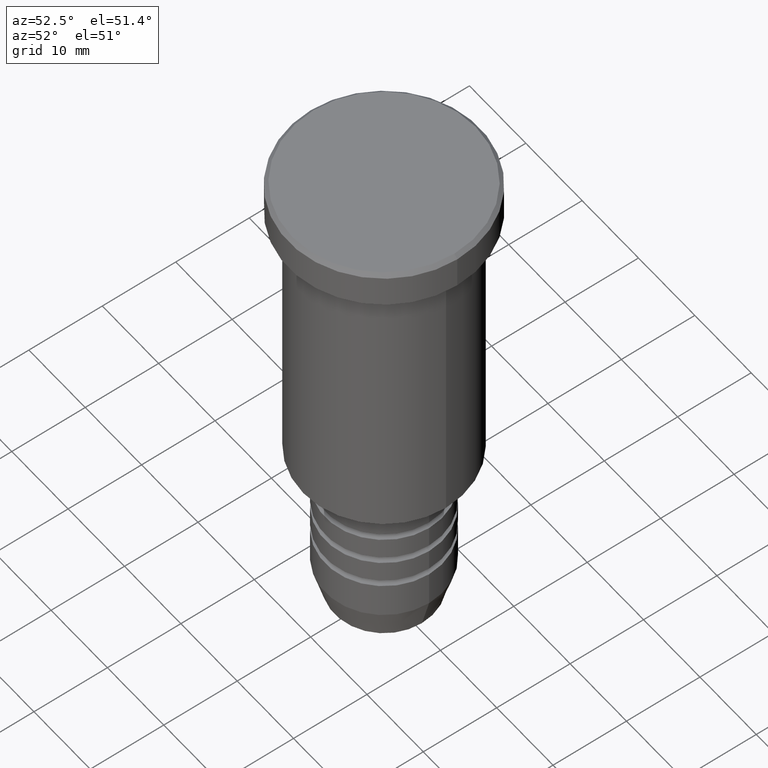
[diagram: clean part render]
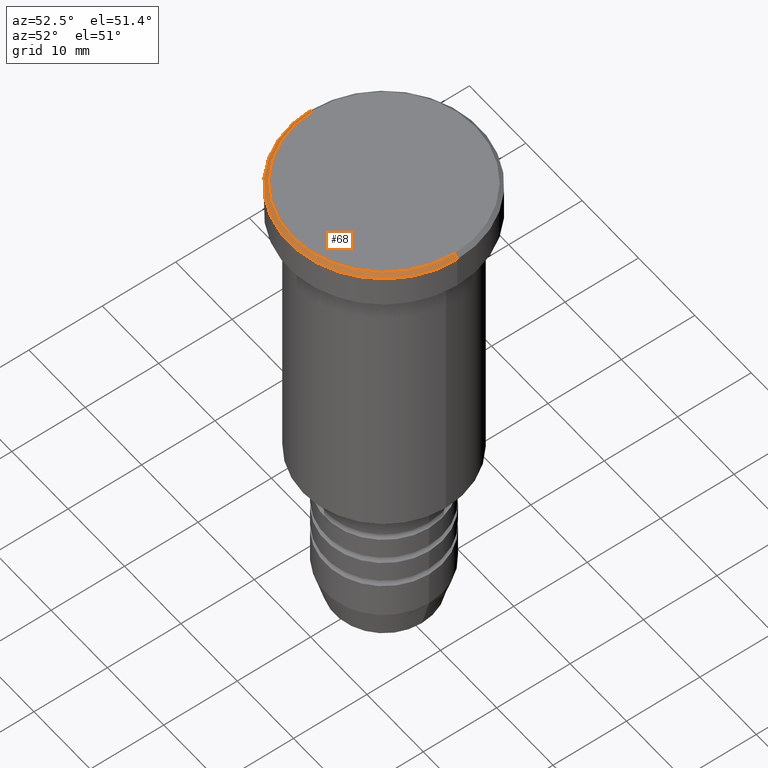
[diagram: same view with one face highlighted and labeled with its STEP entity id]
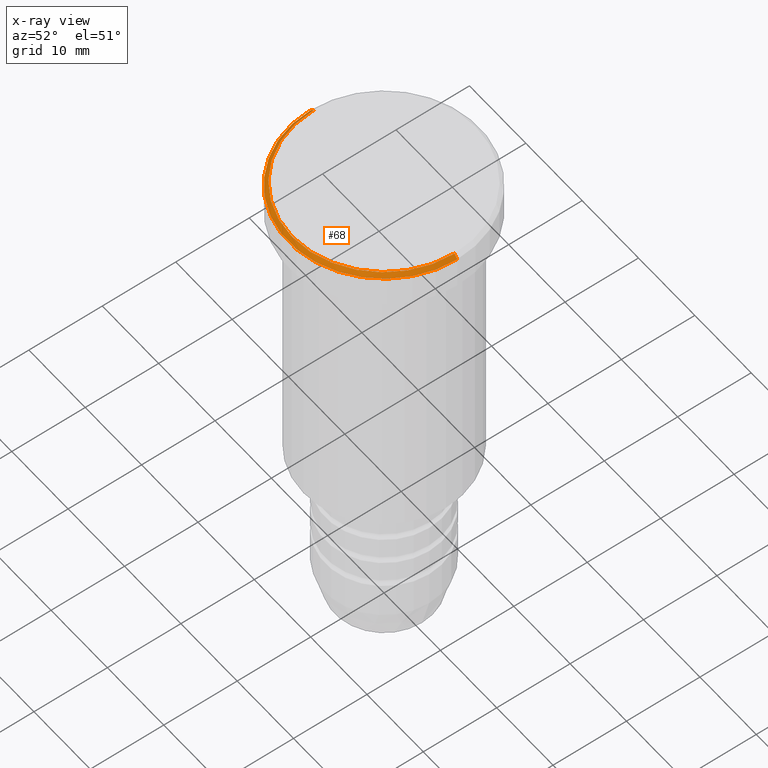
[diagram: x-ray of the same camera — body ghosted, the highlighted face saturated]
A machine part, auxiliary view. The second image highlights one B-rep face of the part: STEP entity #68.
The next image is the same camera in x-ray: the body ghosted, the highlighted face saturated — about 0% of this face is hidden behind the body in this view.
In plain terms, the highlighted conical surface has half-angle 45 deg.
Its self-contained STEP definition (entity closure, byte-faithful):
#9 = DIRECTION ( 'NONE',  ( 0.7071067811865487940, 8.659560562354948882E-17, -0.7071067811865463515 ) ) ;
#32 = VERTEX_POINT ( 'NONE', #161 ) ;
#68 = ADVANCED_FACE ( 'NONE', ( #906 ), #440, .T. ) ;
#129 = AXIS2_PLACEMENT_3D ( 'NONE', #1128, #1150, #494 ) ;
#138 = DIRECTION ( 'NONE',  ( -0.7071067811865487940, 0.000000000000000000, -0.7071067811865463515 ) ) ;
#161 = CARTESIAN_POINT ( 'NONE',  ( -13.00000000000000000, 1.592040838891559095E-15, -0.5000000000000004441 ) ) ;
#178 = DIRECTION ( 'NONE',  ( 1.000000000000000000, 0.000000000000000000, 0.000000000000000000 ) ) ;
#183 = EDGE_CURVE ( 'NONE', #806, #676, #827, .T. ) ;
#226 = LINE ( 'NONE', #973, #444 ) ;
#251 = VECTOR ( 'NONE', #9, 1000.000000000000000 ) ;
#287 = ORIENTED_EDGE ( 'NONE', *, *, #779, .T. ) ;
#297 = DIRECTION ( 'NONE',  ( 0.000000000000000000, 0.000000000000000000, -1.000000000000000000 ) ) ;
#326 = CIRCLE ( 'NONE', #936, 13.00000000000000000 ) ;
#357 = CARTESIAN_POINT ( 'NONE',  ( 0.000000000000000000, 0.000000000000000000, 0.000000000000000000 ) ) ;
#360 = CARTESIAN_POINT ( 'NONE',  ( 12.49999999999999645, 1.561424668912875111E-15, 0.000000000000000000 ) ) ;
#373 = CARTESIAN_POINT ( 'NONE',  ( 0.000000000000000000, 0.000000000000000000, -0.5000000000000004441 ) ) ;
#440 = CONICAL_SURFACE ( 'NONE', #1098, 12.49999999999999645, 0.7853981633974500554 ) ;
#444 = VECTOR ( 'NONE', #138, 1000.000000000000000 ) ;
#459 = EDGE_CURVE ( 'NONE', #676, #861, #938, .T. ) ;
#484 = EDGE_CURVE ( 'NONE', #861, #32, #326, .T. ) ;
#494 = DIRECTION ( 'NONE',  ( 1.000000000000000000, 0.000000000000000000, 0.000000000000000000 ) ) ;
#512 = CARTESIAN_POINT ( 'NONE',  ( 13.00000000000000000, 0.000000000000000000, -0.5000000000000004441 ) ) ;
#570 = ORIENTED_EDGE ( 'NONE', *, *, #484, .F. ) ;
#676 = VERTEX_POINT ( 'NONE', #360 ) ;
#689 = ORIENTED_EDGE ( 'NONE', *, *, #459, .F. ) ;
#714 = DIRECTION ( 'NONE',  ( 0.000000000000000000, 0.000000000000000000, -1.000000000000000000 ) ) ;
#759 = CARTESIAN_POINT ( 'NONE',  ( 12.49999999999999645, 1.530808498934191127E-15, 0.000000000000000000 ) ) ;
#779 = EDGE_CURVE ( 'NONE', #806, #32, #226, .T. ) ;
#806 = VERTEX_POINT ( 'NONE', #1014 ) ;
#827 = CIRCLE ( 'NONE', #129, 12.49999999999999645 ) ;
#861 = VERTEX_POINT ( 'NONE', #512 ) ;
#906 = FACE_OUTER_BOUND ( 'NONE', #1144, .T. ) ;
#916 = DIRECTION ( 'NONE',  ( -1.000000000000000000, 0.000000000000000000, 0.000000000000000000 ) ) ;
#936 = AXIS2_PLACEMENT_3D ( 'NONE', #373, #297, #178 ) ;
#938 = LINE ( 'NONE', #759, #251 ) ;
#973 = CARTESIAN_POINT ( 'NONE',  ( -12.49999999999999645, 0.000000000000000000, 0.000000000000000000 ) ) ;
#1014 = CARTESIAN_POINT ( 'NONE',  ( -12.49999999999999645, 0.000000000000000000, 0.000000000000000000 ) ) ;
#1098 = AXIS2_PLACEMENT_3D ( 'NONE', #357, #714, #916 ) ;
#1128 = CARTESIAN_POINT ( 'NONE',  ( 0.000000000000000000, 0.000000000000000000, 0.000000000000000000 ) ) ;
#1144 = EDGE_LOOP ( 'NONE', ( #689, #1169, #287, #570 ) ) ;
#1150 = DIRECTION ( 'NONE',  ( -0.000000000000000000, -0.000000000000000000, 1.000000000000000000 ) ) ;
#1169 = ORIENTED_EDGE ( 'NONE', *, *, #183, .F. ) ;